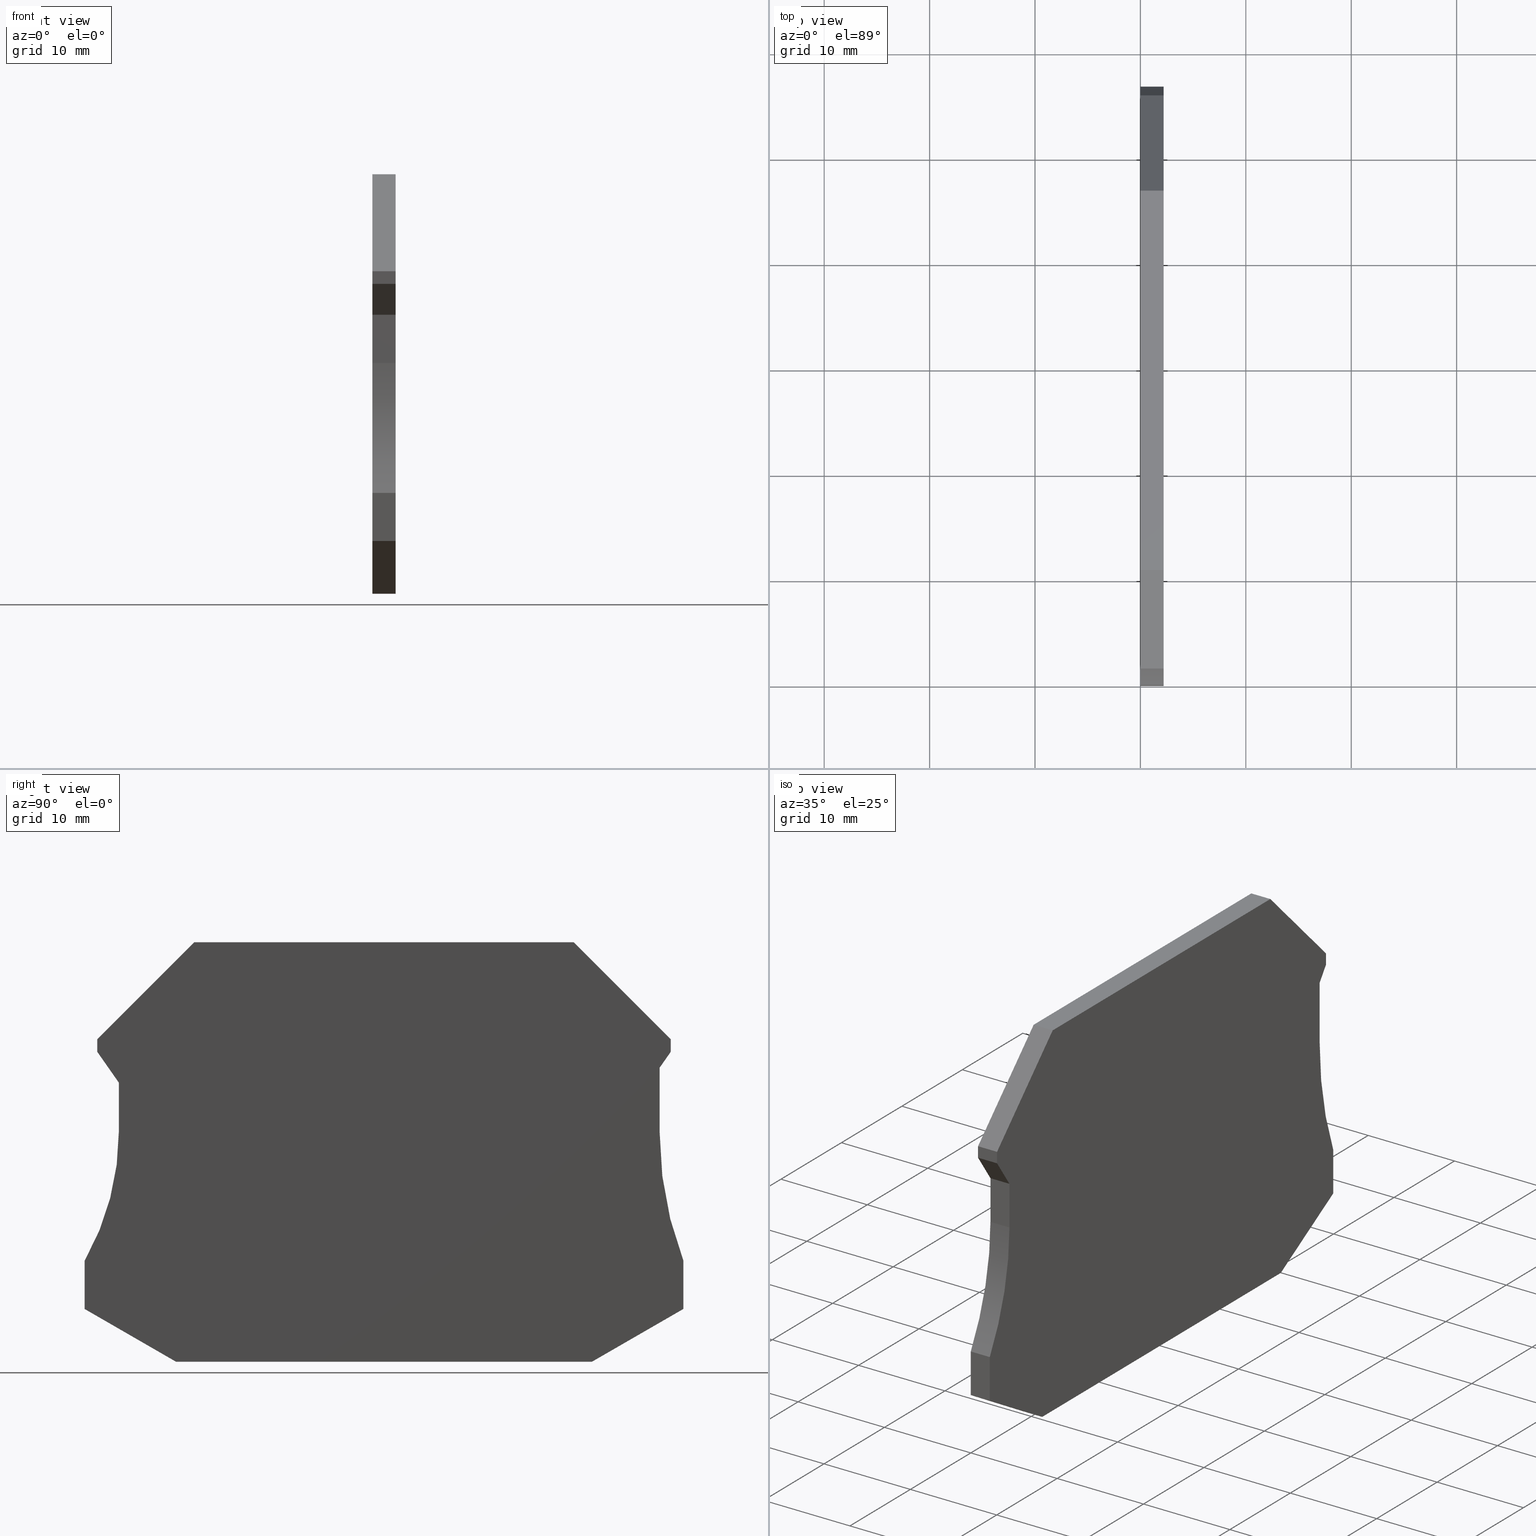
[diagram: canonical four-view strip — front | top / right | iso, engineering-drawing reading convention]
A machine part, canonical four-view strip (front | top / right | iso — engineering-drawing reading convention). The complete STEP part file that produces these views, byte-faithful:
ISO-10303-21;
HEADER;
FILE_DESCRIPTION(('STEP AP214'),'1');
FILE_NAME('cctmp_2EAAB891-A6F8-4A26-BDE4-9A919CDBD264_2023_07_24_21_51_30_0210..stp','2023-07-24T19:51:30',('SIEMENS A&D'),('CADClick - www.CADClick.com'),'Spatial InterOp 3D postprocessed',' ','unknown authorization');
FILE_SCHEMA(('AUTOMOTIVE_DESIGN'));
ENDSEC;
DATA;
#1=MECHANICAL_DESIGN_GEOMETRIC_PRESENTATION_REPRESENTATION(' ',(#10,#11,#12,#13,#14,#15,#16,#17,#18,#19,#20,#21,#22,#23,#24,#25,#26,#27,#28),#6);
#2=PRODUCT_DEFINITION_CONTEXT('',#29,'design');
#3=APPLICATION_PROTOCOL_DEFINITION('INTERNATIONAL STANDARD','automotive_design',1994,#29);
#4=PRODUCT_CATEGORY_RELATIONSHIP('NONE','NONE',#30,#31);
#5=SHAPE_DEFINITION_REPRESENTATION(#32,#33);
#6= (GEOMETRIC_REPRESENTATION_CONTEXT(3)GLOBAL_UNCERTAINTY_ASSIGNED_CONTEXT((#36))GLOBAL_UNIT_ASSIGNED_CONTEXT((#38,#39,#40))REPRESENTATION_CONTEXT('NONE','WORKSPACE'));
#10=STYLED_ITEM('',(#42),#43);
#11=STYLED_ITEM('',(#44),#45);
#12=STYLED_ITEM('',(#46),#47);
#13=STYLED_ITEM('',(#48),#49);
#14=STYLED_ITEM('',(#50),#51);
#15=STYLED_ITEM('',(#52),#53);
#16=STYLED_ITEM('',(#54),#55);
#17=STYLED_ITEM('',(#56),#57);
#18=STYLED_ITEM('',(#58),#59);
#19=STYLED_ITEM('',(#60),#61);
#20=STYLED_ITEM('',(#62),#63);
#21=STYLED_ITEM('',(#64),#65);
#22=STYLED_ITEM('',(#66),#67);
#23=STYLED_ITEM('',(#68),#69);
#24=STYLED_ITEM('',(#70),#71);
#25=STYLED_ITEM('',(#72),#73);
#26=STYLED_ITEM('',(#74),#75);
#27=STYLED_ITEM('',(#76),#77);
#28=STYLED_ITEM('',(#78),#79);
#29=APPLICATION_CONTEXT(' ');
#30=PRODUCT_CATEGORY('part','NONE');
#31=PRODUCT_RELATED_PRODUCT_CATEGORY('detail',' ',(#80));
#32=PRODUCT_DEFINITION_SHAPE('NONE','NONE',#81);
#33=ADVANCED_BREP_SHAPE_REPRESENTATION('2023_07_24_21_51_30_0210',(#79,#82),#6);
#36=UNCERTAINTY_MEASURE_WITH_UNIT(LENGTH_MEASURE(1.0E-006),#38,'','');
#38= (CONVERSION_BASED_UNIT('MILLIMETRE',#85)LENGTH_UNIT()NAMED_UNIT(#88));
#39= (NAMED_UNIT(#90)PLANE_ANGLE_UNIT()SI_UNIT($,.RADIAN.));
#40= (NAMED_UNIT(#90)SOLID_ANGLE_UNIT()SI_UNIT($,.STERADIAN.));
#42=PRESENTATION_STYLE_ASSIGNMENT((#96));
#43=ADVANCED_FACE('',(#97),#98,.F.);
#44=PRESENTATION_STYLE_ASSIGNMENT((#99));
#45=ADVANCED_FACE('',(#100),#101,.F.);
#46=PRESENTATION_STYLE_ASSIGNMENT((#102));
#47=ADVANCED_FACE('',(#103),#104,.T.);
#48=PRESENTATION_STYLE_ASSIGNMENT((#105));
#49=ADVANCED_FACE('',(#106),#107,.F.);
#50=PRESENTATION_STYLE_ASSIGNMENT((#108));
#51=ADVANCED_FACE('',(#109),#110,.F.);
#52=PRESENTATION_STYLE_ASSIGNMENT((#111));
#53=ADVANCED_FACE('',(#112),#113,.F.);
#54=PRESENTATION_STYLE_ASSIGNMENT((#114));
#55=ADVANCED_FACE('',(#115),#116,.T.);
#56=PRESENTATION_STYLE_ASSIGNMENT((#117));
#57=ADVANCED_FACE('',(#118),#119,.T.);
#58=PRESENTATION_STYLE_ASSIGNMENT((#120));
#59=ADVANCED_FACE('',(#121),#122,.T.);
#60=PRESENTATION_STYLE_ASSIGNMENT((#123));
#61=ADVANCED_FACE('',(#124),#125,.F.);
#62=PRESENTATION_STYLE_ASSIGNMENT((#126));
#63=ADVANCED_FACE('',(#127),#128,.T.);
#64=PRESENTATION_STYLE_ASSIGNMENT((#129));
#65=ADVANCED_FACE('',(#130),#131,.F.);
#66=PRESENTATION_STYLE_ASSIGNMENT((#132));
#67=ADVANCED_FACE('',(#133),#134,.T.);
#68=PRESENTATION_STYLE_ASSIGNMENT((#135));
#69=ADVANCED_FACE('',(#136),#137,.F.);
#70=PRESENTATION_STYLE_ASSIGNMENT((#138));
#71=ADVANCED_FACE('',(#139),#140,.F.);
#72=PRESENTATION_STYLE_ASSIGNMENT((#141));
#73=ADVANCED_FACE('',(#142),#143,.T.);
#74=PRESENTATION_STYLE_ASSIGNMENT((#144));
#75=ADVANCED_FACE('',(#145),#146,.F.);
#76=PRESENTATION_STYLE_ASSIGNMENT((#147));
#77=ADVANCED_FACE('',(#148),#149,.T.);
#78=PRESENTATION_STYLE_ASSIGNMENT((#150));
#79=MANIFOLD_SOLID_BREP('2023_07_24_21_51_30_0210',#151);
#80=PRODUCT('2023_07_24_21_51_30_0210','','PART--DESC',(#152));
#81=PRODUCT_DEFINITION('','NONE',#153,#2);
#82=AXIS2_PLACEMENT_3D('',#154,#155,#156);
#85=LENGTH_MEASURE_WITH_UNIT(LENGTH_MEASURE(1.0),#157);
#88=DIMENSIONAL_EXPONENTS(1.0,0.0,0.0,0.0,0.0,0.0,0.0);
#90=DIMENSIONAL_EXPONENTS(0.0,0.0,0.0,0.0,0.0,0.0,0.0);
#96=SURFACE_STYLE_USAGE(.BOTH.,#158);
#97=FACE_OUTER_BOUND('',#159,.T.);
#98=PLANE('',#160);
#99=SURFACE_STYLE_USAGE(.BOTH.,#158);
#100=FACE_OUTER_BOUND('',#162,.T.);
#101=PLANE('',#163);
#102=SURFACE_STYLE_USAGE(.BOTH.,#158);
#103=FACE_OUTER_BOUND('',#165,.T.);
#104=PLANE('',#166);
#105=SURFACE_STYLE_USAGE(.BOTH.,#158);
#106=FACE_OUTER_BOUND('',#168,.T.);
#107=CYLINDRICAL_SURFACE('',#169,25.0);
#108=SURFACE_STYLE_USAGE(.BOTH.,#158);
#109=FACE_OUTER_BOUND('',#171,.T.);
#110=PLANE('',#172);
#111=SURFACE_STYLE_USAGE(.BOTH.,#158);
#112=FACE_OUTER_BOUND('',#174,.T.);
#113=PLANE('',#175);
#114=SURFACE_STYLE_USAGE(.BOTH.,#158);
#115=FACE_OUTER_BOUND('',#177,.T.);
#116=PLANE('',#178);
#117=SURFACE_STYLE_USAGE(.BOTH.,#158);
#118=FACE_OUTER_BOUND('',#180,.T.);
#119=PLANE('',#181);
#120=SURFACE_STYLE_USAGE(.BOTH.,#158);
#121=FACE_OUTER_BOUND('',#183,.T.);
#122=PLANE('',#184);
#123=SURFACE_STYLE_USAGE(.BOTH.,#158);
#124=FACE_OUTER_BOUND('',#186,.T.);
#125=PLANE('',#187);
#126=SURFACE_STYLE_USAGE(.BOTH.,#158);
#127=FACE_OUTER_BOUND('',#189,.T.);
#128=PLANE('',#190);
#129=SURFACE_STYLE_USAGE(.BOTH.,#158);
#130=FACE_OUTER_BOUND('',#192,.T.);
#131=PLANE('',#193);
#132=SURFACE_STYLE_USAGE(.BOTH.,#158);
#133=FACE_OUTER_BOUND('',#195,.T.);
#134=PLANE('',#196);
#135=SURFACE_STYLE_USAGE(.BOTH.,#158);
#136=FACE_OUTER_BOUND('',#198,.T.);
#137=CYLINDRICAL_SURFACE('',#199,34.0);
#138=SURFACE_STYLE_USAGE(.BOTH.,#158);
#139=FACE_OUTER_BOUND('',#201,.T.);
#140=PLANE('',#202);
#141=SURFACE_STYLE_USAGE(.BOTH.,#158);
#142=FACE_OUTER_BOUND('',#204,.T.);
#143=PLANE('',#205);
#144=SURFACE_STYLE_USAGE(.BOTH.,#158);
#145=FACE_OUTER_BOUND('',#207,.T.);
#146=PLANE('',#208);
#147=SURFACE_STYLE_USAGE(.BOTH.,#158);
#148=FACE_OUTER_BOUND('',#210,.T.);
#149=PLANE('',#211);
#150=SURFACE_STYLE_USAGE(.BOTH.,#158);
#151=CLOSED_SHELL('',(#43,#45,#47,#49,#51,#53,#55,#57,#59,#61,#63,#65,#67,#69,#71,#73,#75,#77));
#152=PRODUCT_CONTEXT('',#29,'mechanical');
#153=PRODUCT_DEFINITION_FORMATION_WITH_SPECIFIED_SOURCE(' ','NONE',#80,.NOT_KNOWN.);
#154=CARTESIAN_POINT('',(0.0,0.0,0.0));
#155=DIRECTION('',(0.0,0.0,1.0));
#156=DIRECTION('',(1.0,0.0,0.0));
#157= (NAMED_UNIT(#88)LENGTH_UNIT()SI_UNIT(.MILLI.,.METRE.));
#158=SURFACE_SIDE_STYLE('',(#214));
#159=EDGE_LOOP('',(#215,#216,#217,#218,#219,#220,#221,#222,#223,#224,#225,#226,#227,#228,#229,#230));
#160=AXIS2_PLACEMENT_3D('',#231,#232,#233);
#162=EDGE_LOOP('',(#235,#236,#237,#238));
#163=AXIS2_PLACEMENT_3D('',#239,#240,#241);
#165=EDGE_LOOP('',(#243,#244,#245,#246));
#166=AXIS2_PLACEMENT_3D('',#247,#248,#249);
#168=EDGE_LOOP('',(#251,#252,#253,#254));
#169=AXIS2_PLACEMENT_3D('',#255,#256,#257);
#171=EDGE_LOOP('',(#259,#260,#261,#262));
#172=AXIS2_PLACEMENT_3D('',#263,#264,#265);
#174=EDGE_LOOP('',(#267,#268,#269,#270));
#175=AXIS2_PLACEMENT_3D('',#271,#272,#273);
#177=EDGE_LOOP('',(#275,#276,#277,#278));
#178=AXIS2_PLACEMENT_3D('',#279,#280,#281);
#180=EDGE_LOOP('',(#283,#284,#285,#286));
#181=AXIS2_PLACEMENT_3D('',#287,#288,#289);
#183=EDGE_LOOP('',(#291,#292,#293,#294));
#184=AXIS2_PLACEMENT_3D('',#295,#296,#297);
#186=EDGE_LOOP('',(#299,#300,#301,#302));
#187=AXIS2_PLACEMENT_3D('',#303,#304,#305);
#189=EDGE_LOOP('',(#307,#308,#309,#310));
#190=AXIS2_PLACEMENT_3D('',#311,#312,#313);
#192=EDGE_LOOP('',(#315,#316,#317,#318));
#193=AXIS2_PLACEMENT_3D('',#319,#320,#321);
#195=EDGE_LOOP('',(#323,#324,#325,#326));
#196=AXIS2_PLACEMENT_3D('',#327,#328,#329);
#198=EDGE_LOOP('',(#331,#332,#333,#334));
#199=AXIS2_PLACEMENT_3D('',#335,#336,#337);
#201=EDGE_LOOP('',(#339,#340,#341,#342));
#202=AXIS2_PLACEMENT_3D('',#343,#344,#345);
#204=EDGE_LOOP('',(#347,#348,#349,#350));
#205=AXIS2_PLACEMENT_3D('',#351,#352,#353);
#207=EDGE_LOOP('',(#355,#356,#357,#358));
#208=AXIS2_PLACEMENT_3D('',#359,#360,#361);
#210=EDGE_LOOP('',(#363,#364,#365,#366,#367,#368,#369,#370,#371,#372,#373,#374,#375,#376,#377,#378));
#211=AXIS2_PLACEMENT_3D('',#379,#380,#381);
#214=SURFACE_STYLE_FILL_AREA(#383);
#215=ORIENTED_EDGE('',*,*,#384,.T.);
#216=ORIENTED_EDGE('',*,*,#385,.T.);
#217=ORIENTED_EDGE('',*,*,#386,.F.);
#218=ORIENTED_EDGE('',*,*,#387,.F.);
#219=ORIENTED_EDGE('',*,*,#388,.F.);
#220=ORIENTED_EDGE('',*,*,#389,.F.);
#221=ORIENTED_EDGE('',*,*,#390,.F.);
#222=ORIENTED_EDGE('',*,*,#391,.F.);
#223=ORIENTED_EDGE('',*,*,#392,.T.);
#224=ORIENTED_EDGE('',*,*,#393,.T.);
#225=ORIENTED_EDGE('',*,*,#394,.F.);
#226=ORIENTED_EDGE('',*,*,#395,.T.);
#227=ORIENTED_EDGE('',*,*,#396,.T.);
#228=ORIENTED_EDGE('',*,*,#397,.T.);
#229=ORIENTED_EDGE('',*,*,#398,.T.);
#230=ORIENTED_EDGE('',*,*,#399,.T.);
#231=CARTESIAN_POINT('',(-9.08767762814606E-028,66.3167035417405,-3.98000240000014));
#232=DIRECTION('',(1.0,-6.27781712017518E-043,0.0));
#233=DIRECTION('',(6.27781712017518E-043,1.0,1.05655906439346E-014));
#235=ORIENTED_EDGE('',*,*,#401,.F.);
#236=ORIENTED_EDGE('',*,*,#402,.T.);
#237=ORIENTED_EDGE('',*,*,#392,.F.);
#238=ORIENTED_EDGE('',*,*,#403,.F.);
#239=CARTESIAN_POINT('',(1.10000000000006,55.5999999999994,30.6000000000026));
#240=DIRECTION('',(0.0,-1.0,-1.05655906439346E-014));
#241=DIRECTION('',(1.0,-1.11631705655198E-028,1.05655906439346E-014));
#243=ORIENTED_EDGE('',*,*,#405,.F.);
#244=ORIENTED_EDGE('',*,*,#399,.F.);
#245=ORIENTED_EDGE('',*,*,#406,.F.);
#246=ORIENTED_EDGE('',*,*,#407,.T.);
#247=CARTESIAN_POINT('',(2.20000000000033,0.0417178364731425,4.98394683393298));
#248=DIRECTION('',(9.15006990363455E-015,-0.499999999999991,-0.866025403784444));
#249=DIRECTION('',(-5.2827953219673E-015,-0.866025403784444,0.499999999999991));
#251=ORIENTED_EDGE('',*,*,#409,.T.);
#252=ORIENTED_EDGE('',*,*,#410,.T.);
#253=ORIENTED_EDGE('',*,*,#411,.T.);
#254=ORIENTED_EDGE('',*,*,#385,.F.);
#255=CARTESIAN_POINT('',(2.20000000000015,-21.7500000000005,21.8999999999999));
#256=DIRECTION('',(-1.0,1.11631705655199E-028,-1.05655906439346E-014));
#257=DIRECTION('',(6.02670443536817E-043,1.0,1.05655906439346E-014));
#259=ORIENTED_EDGE('',*,*,#413,.F.);
#260=ORIENTED_EDGE('',*,*,#403,.T.);
#261=ORIENTED_EDGE('',*,*,#391,.T.);
#262=ORIENTED_EDGE('',*,*,#414,.F.);
#263=CARTESIAN_POINT('',(1.09999999999996,46.3999999999974,39.8000000000025));
#264=DIRECTION('',(7.47100079156643E-015,-0.707106781186622,-0.707106781186473));
#265=DIRECTION('',(-7.47100079156816E-015,-0.707106781186473,0.707106781186622));
#267=ORIENTED_EDGE('',*,*,#416,.T.);
#268=ORIENTED_EDGE('',*,*,#414,.T.);
#269=ORIENTED_EDGE('',*,*,#390,.T.);
#270=ORIENTED_EDGE('',*,*,#417,.F.);
#271=CARTESIAN_POINT('',(1.60000000000012,28.1999999999993,39.8000000000023));
#272=DIRECTION('',(0.0,1.05655906439348E-014,-1.0));
#273=DIRECTION('',(-1.0,6.27781712017518E-043,6.63288458292564E-057));
#275=ORIENTED_EDGE('',*,*,#417,.T.);
#276=ORIENTED_EDGE('',*,*,#389,.T.);
#277=ORIENTED_EDGE('',*,*,#419,.F.);
#278=ORIENTED_EDGE('',*,*,#420,.T.);
#279=CARTESIAN_POINT('',(1.09999999999996,10.4000000000012,39.8000000000021));
#280=DIRECTION('',(-7.47100079156643E-015,-0.707106781186637,0.707106781186458));
#281=DIRECTION('',(1.0,-1.11631705655199E-028,1.05655906439346E-014));
#283=ORIENTED_EDGE('',*,*,#422,.T.);
#284=ORIENTED_EDGE('',*,*,#387,.T.);
#285=ORIENTED_EDGE('',*,*,#423,.T.);
#286=ORIENTED_EDGE('',*,*,#424,.T.);
#287=CARTESIAN_POINT('',(1.10000000000007,1.19999999999935,29.4000000000025));
#288=DIRECTION('',(6.06017382949196E-015,-0.819152044288986,-0.573576436351055));
#289=DIRECTION('',(-8.65482517509968E-015,-0.573576436351055,0.819152044288986));
#291=ORIENTED_EDGE('',*,*,#419,.T.);
#292=ORIENTED_EDGE('',*,*,#388,.T.);
#293=ORIENTED_EDGE('',*,*,#422,.F.);
#294=ORIENTED_EDGE('',*,*,#426,.T.);
#295=CARTESIAN_POINT('',(1.10000000000006,1.19999999999934,30.600000000002));
#296=DIRECTION('',(0.0,-1.0,-1.05655906439346E-014));
#297=DIRECTION('',(1.0,-1.11631705655198E-028,1.05655906439346E-014));
#299=ORIENTED_EDGE('',*,*,#428,.F.);
#300=ORIENTED_EDGE('',*,*,#409,.F.);
#301=ORIENTED_EDGE('',*,*,#384,.F.);
#302=ORIENTED_EDGE('',*,*,#405,.T.);
#303=CARTESIAN_POINT('',(-2.20000239999972,-1.77635683940025E-014,8.80658585545214));
#304=DIRECTION('',(2.93254050041516E-031,1.0,1.0537835068319E-014));
#305=DIRECTION('',(1.0,-1.11631705655198E-028,1.05655906439346E-014));
#307=ORIENTED_EDGE('',*,*,#406,.T.);
#308=ORIENTED_EDGE('',*,*,#398,.F.);
#309=ORIENTED_EDGE('',*,*,#430,.T.);
#310=ORIENTED_EDGE('',*,*,#431,.T.);
#311=CARTESIAN_POINT('',(-0.499999999999635,38.2139895394442,-1.35003119794419E-013));
#312=DIRECTION('',(1.05655906439346E-014,1.05655906439346E-014,-1.0));
#313=DIRECTION('',(-1.0,1.11631705655199E-028,-1.05655906439346E-014));
#315=ORIENTED_EDGE('',*,*,#433,.F.);
#316=ORIENTED_EDGE('',*,*,#393,.F.);
#317=ORIENTED_EDGE('',*,*,#402,.F.);
#318=ORIENTED_EDGE('',*,*,#434,.F.);
#319=CARTESIAN_POINT('',(1.10000000000007,55.5999999999994,29.4000000000031));
#320=DIRECTION('',(-6.06017382949196E-015,-0.819152044288998,0.573576436351037));
#321=DIRECTION('',(1.0,-1.11631705655199E-028,1.05655906439346E-014));
#323=ORIENTED_EDGE('',*,*,#394,.T.);
#324=ORIENTED_EDGE('',*,*,#433,.T.);
#325=ORIENTED_EDGE('',*,*,#436,.T.);
#326=ORIENTED_EDGE('',*,*,#437,.F.);
#327=CARTESIAN_POINT('',(2.20000000000015,54.5499999999995,21.7621318441144));
#328=DIRECTION('',(0.0,1.0,1.05655906439346E-014));
#329=DIRECTION('',(-1.05655906439346E-014,-1.05655906439346E-014,1.0));
#331=ORIENTED_EDGE('',*,*,#439,.T.);
#332=ORIENTED_EDGE('',*,*,#440,.F.);
#333=ORIENTED_EDGE('',*,*,#395,.F.);
#334=ORIENTED_EDGE('',*,*,#437,.T.);
#335=CARTESIAN_POINT('',(2.20000000000015,88.5499999999995,21.7621318441147));
#336=DIRECTION('',(-1.0,1.11631705655199E-028,-1.05655906439346E-014));
#337=DIRECTION('',(6.11955282302791E-043,1.0,1.05655906439346E-014));
#339=ORIENTED_EDGE('',*,*,#396,.F.);
#340=ORIENTED_EDGE('',*,*,#440,.T.);
#341=ORIENTED_EDGE('',*,*,#442,.F.);
#342=ORIENTED_EDGE('',*,*,#443,.F.);
#343=CARTESIAN_POINT('',(-2.20000239999969,56.8,5.87405804183574));
#344=DIRECTION('',(0.0,-1.0,-1.05655906439346E-014));
#345=DIRECTION('',(1.0,-1.11631705655198E-028,1.05655906439346E-014));
#347=ORIENTED_EDGE('',*,*,#423,.F.);
#348=ORIENTED_EDGE('',*,*,#386,.T.);
#349=ORIENTED_EDGE('',*,*,#411,.F.);
#350=ORIENTED_EDGE('',*,*,#445,.T.);
#351=CARTESIAN_POINT('',(1.10000000000011,3.2499999999994,26.4722965861811));
#352=DIRECTION('',(0.0,-1.0,-1.05655906439346E-014));
#353=DIRECTION('',(1.0,-1.11631705655198E-028,1.05655906439346E-014));
#355=ORIENTED_EDGE('',*,*,#430,.F.);
#356=ORIENTED_EDGE('',*,*,#397,.F.);
#357=ORIENTED_EDGE('',*,*,#443,.T.);
#358=ORIENTED_EDGE('',*,*,#447,.F.);
#359=CARTESIAN_POINT('',(-2.20000239999962,47.8346943270423,-0.168089005598254));
#360=DIRECTION('',(-9.15006990363455E-015,-0.500000000000009,0.866025403784433));
#361=DIRECTION('',(1.0,-1.11631705655199E-028,1.05655906439346E-014));
#363=ORIENTED_EDGE('',*,*,#407,.F.);
#364=ORIENTED_EDGE('',*,*,#431,.F.);
#365=ORIENTED_EDGE('',*,*,#447,.T.);
#366=ORIENTED_EDGE('',*,*,#442,.T.);
#367=ORIENTED_EDGE('',*,*,#439,.F.);
#368=ORIENTED_EDGE('',*,*,#436,.F.);
#369=ORIENTED_EDGE('',*,*,#434,.T.);
#370=ORIENTED_EDGE('',*,*,#401,.T.);
#371=ORIENTED_EDGE('',*,*,#413,.T.);
#372=ORIENTED_EDGE('',*,*,#416,.F.);
#373=ORIENTED_EDGE('',*,*,#420,.F.);
#374=ORIENTED_EDGE('',*,*,#426,.F.);
#375=ORIENTED_EDGE('',*,*,#424,.F.);
#376=ORIENTED_EDGE('',*,*,#445,.F.);
#377=ORIENTED_EDGE('',*,*,#410,.F.);
#378=ORIENTED_EDGE('',*,*,#428,.T.);
#379=CARTESIAN_POINT('',(2.20000000000036,32.7064406857822,2.60070502397922));
#380=DIRECTION('',(1.0,-1.11631705655199E-028,1.05655906439346E-014));
#381=DIRECTION('',(6.27781712017518E-043,1.0,1.05655906439346E-014));
#383=FILL_AREA_STYLE('',(#450));
#384=EDGE_CURVE('',#451,#452,#453,.T.);
#385=EDGE_CURVE('',#452,#454,#455,.T.);
#386=EDGE_CURVE('',#456,#454,#457,.T.);
#387=EDGE_CURVE('',#458,#456,#459,.T.);
#388=EDGE_CURVE('',#460,#458,#461,.T.);
#389=EDGE_CURVE('',#462,#460,#463,.T.);
#390=EDGE_CURVE('',#464,#462,#465,.T.);
#391=EDGE_CURVE('',#466,#464,#467,.T.);
#392=EDGE_CURVE('',#466,#468,#469,.T.);
#393=EDGE_CURVE('',#468,#470,#471,.T.);
#394=EDGE_CURVE('',#472,#470,#473,.T.);
#395=EDGE_CURVE('',#472,#474,#475,.T.);
#396=EDGE_CURVE('',#474,#476,#477,.T.);
#397=EDGE_CURVE('',#476,#478,#479,.T.);
#398=EDGE_CURVE('',#478,#480,#481,.T.);
#399=EDGE_CURVE('',#480,#451,#482,.T.);
#401=EDGE_CURVE('',#484,#485,#486,.T.);
#402=EDGE_CURVE('',#484,#468,#487,.T.);
#403=EDGE_CURVE('',#485,#466,#488,.T.);
#405=EDGE_CURVE('',#451,#490,#491,.T.);
#406=EDGE_CURVE('',#492,#480,#493,.T.);
#407=EDGE_CURVE('',#492,#490,#494,.T.);
#409=EDGE_CURVE('',#452,#496,#497,.T.);
#410=EDGE_CURVE('',#496,#498,#499,.T.);
#411=EDGE_CURVE('',#498,#454,#500,.T.);
#413=EDGE_CURVE('',#485,#502,#503,.T.);
#414=EDGE_CURVE('',#502,#464,#504,.T.);
#416=EDGE_CURVE('',#506,#502,#507,.T.);
#417=EDGE_CURVE('',#506,#462,#508,.T.);
#419=EDGE_CURVE('',#510,#460,#511,.T.);
#420=EDGE_CURVE('',#510,#506,#512,.T.);
#422=EDGE_CURVE('',#514,#458,#515,.T.);
#423=EDGE_CURVE('',#456,#516,#517,.T.);
#424=EDGE_CURVE('',#516,#514,#518,.T.);
#426=EDGE_CURVE('',#514,#510,#520,.T.);
#428=EDGE_CURVE('',#496,#490,#522,.T.);
#430=EDGE_CURVE('',#478,#524,#525,.T.);
#431=EDGE_CURVE('',#524,#492,#526,.T.);
#433=EDGE_CURVE('',#470,#528,#529,.T.);
#434=EDGE_CURVE('',#528,#484,#530,.T.);
#436=EDGE_CURVE('',#528,#532,#533,.T.);
#437=EDGE_CURVE('',#472,#532,#534,.T.);
#439=EDGE_CURVE('',#532,#536,#537,.T.);
#440=EDGE_CURVE('',#474,#536,#538,.T.);
#442=EDGE_CURVE('',#540,#536,#541,.T.);
#443=EDGE_CURVE('',#476,#540,#542,.T.);
#445=EDGE_CURVE('',#498,#516,#544,.T.);
#447=EDGE_CURVE('',#524,#540,#546,.T.);
#450=FILL_AREA_STYLE_COLOUR('',#549);
#451=VERTEX_POINT('',#550);
#452=VERTEX_POINT('',#551);
#453=LINE('',#552,#553);
#454=VERTEX_POINT('',#554);
#455=CIRCLE('',#555,25.0);
#456=VERTEX_POINT('',#556);
#457=LINE('',#557,#558);
#458=VERTEX_POINT('',#559);
#459=LINE('',#560,#561);
#460=VERTEX_POINT('',#562);
#461=LINE('',#563,#564);
#462=VERTEX_POINT('',#565);
#463=LINE('',#566,#567);
#464=VERTEX_POINT('',#568);
#465=LINE('',#569,#570);
#466=VERTEX_POINT('',#571);
#467=LINE('',#572,#573);
#468=VERTEX_POINT('',#574);
#469=LINE('',#575,#576);
#470=VERTEX_POINT('',#577);
#471=LINE('',#578,#579);
#472=VERTEX_POINT('',#580);
#473=LINE('',#581,#582);
#474=VERTEX_POINT('',#583);
#475=CIRCLE('',#584,34.0);
#476=VERTEX_POINT('',#585);
#477=LINE('',#586,#587);
#478=VERTEX_POINT('',#588);
#479=LINE('',#589,#590);
#480=VERTEX_POINT('',#591);
#481=LINE('',#592,#593);
#482=LINE('',#594,#595);
#484=VERTEX_POINT('',#597);
#485=VERTEX_POINT('',#598);
#486=LINE('',#599,#600);
#487=LINE('',#601,#602);
#488=LINE('',#603,#604);
#490=VERTEX_POINT('',#606);
#491=LINE('',#607,#608);
#492=VERTEX_POINT('',#609);
#493=LINE('',#610,#611);
#494=LINE('',#612,#613);
#496=VERTEX_POINT('',#615);
#497=LINE('',#616,#617);
#498=VERTEX_POINT('',#618);
#499=CIRCLE('',#619,25.0);
#500=LINE('',#620,#621);
#502=VERTEX_POINT('',#623);
#503=LINE('',#624,#625);
#504=LINE('',#626,#627);
#506=VERTEX_POINT('',#629);
#507=LINE('',#630,#631);
#508=LINE('',#632,#633);
#510=VERTEX_POINT('',#635);
#511=LINE('',#636,#637);
#512=LINE('',#638,#639);
#514=VERTEX_POINT('',#641);
#515=LINE('',#642,#643);
#516=VERTEX_POINT('',#644);
#517=LINE('',#645,#646);
#518=LINE('',#647,#648);
#520=LINE('',#650,#651);
#522=LINE('',#653,#654);
#524=VERTEX_POINT('',#656);
#525=LINE('',#657,#658);
#526=LINE('',#659,#660);
#528=VERTEX_POINT('',#662);
#529=LINE('',#663,#664);
#530=LINE('',#665,#666);
#532=VERTEX_POINT('',#668);
#533=LINE('',#669,#670);
#534=LINE('',#671,#672);
#536=VERTEX_POINT('',#674);
#537=CIRCLE('',#675,34.0);
#538=LINE('',#676,#677);
#540=VERTEX_POINT('',#679);
#541=LINE('',#680,#681);
#542=LINE('',#682,#683);
#544=LINE('',#685,#686);
#546=LINE('',#688,#689);
#549=COLOUR_RGB('',0.560784339904785,0.588235318660736,0.600000023841858);
#550=CARTESIAN_POINT('',(-2.52435489670724E-028,2.22044604925031E-014,5.00803263805066));
#551=CARTESIAN_POINT('',(-3.53409685539013E-028,-2.57571741713036E-014,9.57370696437977));
#552=CARTESIAN_POINT('',(-3.02922587604869E-028,-1.82076576038526E-013,24.3638730000068));
#553=VECTOR('',#692,1.0);
#554=CARTESIAN_POINT('',(1.21442045182528E-016,3.24999999999943,21.9000000000002));
#555=AXIS2_PLACEMENT_3D('',#693,#694,#695);
#556=CARTESIAN_POINT('',(-5.55358077275592E-028,3.2499999999994,26.4722965861811));
#557=CARTESIAN_POINT('',(3.73408332937063E-014,3.24999999999906,58.2500000000069));
#558=VECTOR('',#696,1.0);
#559=CARTESIAN_POINT('',(-1.06022905661704E-027,1.19999999999935,29.4000000000025));
#560=CARTESIAN_POINT('',(3.73408332937063E-014,-19.0009874773542,58.2500000000066));
#561=VECTOR('',#697,1.0);
#562=CARTESIAN_POINT('',(-2.86682059164337E-016,1.19999999999934,30.599999999998));
#563=CARTESIAN_POINT('',(3.73408332937063E-014,1.19999999999905,58.2500000000068));
#564=VECTOR('',#698,1.0);
#565=CARTESIAN_POINT('',(-2.52435489670724E-029,10.4000000000012,39.8000000000021));
#566=CARTESIAN_POINT('',(3.73408332937063E-014,28.8500000000016,58.2500000000071));
#567=VECTOR('',#699,1.0);
#568=CARTESIAN_POINT('',(-2.52435489670724E-029,46.3999999999974,39.8000000000025));
#569=CARTESIAN_POINT('',(3.73408332937061E-014,-5.92968082605144,39.8000000000019));
#570=VECTOR('',#700,1.0);
#571=CARTESIAN_POINT('',(-7.57306469012171E-028,55.5999999999994,30.5999999999986));
#572=CARTESIAN_POINT('',(-2.63800801330424E-018,61.8361269999891,24.3638730000074));
#573=VECTOR('',#701,1.0);
#574=CARTESIAN_POINT('',(3.0213716972939E-017,55.5999999999994,29.4000000000031));
#575=CARTESIAN_POINT('',(3.73408332937063E-014,55.5999999999991,58.2500000000074));
#576=VECTOR('',#702,1.0);
#577=CARTESIAN_POINT('',(2.12172912172405E-017,54.5499999999994,27.9004445929237));
#578=CARTESIAN_POINT('',(3.73408332937063E-014,75.8009874773523,58.2500000000076));
#579=VECTOR('',#703,1.0);
#580=CARTESIAN_POINT('',(-1.98256296288709E-016,54.5499999999995,21.7621318441143));
#581=CARTESIAN_POINT('',(3.73408332937063E-014,54.5499999999991,58.2500000000074));
#582=VECTOR('',#704,1.0);
#583=CARTESIAN_POINT('',(1.28310558402815E-013,56.8,9.59917578894326));
#584=AXIS2_PLACEMENT_3D('',#705,#706,#707);
#585=CARTESIAN_POINT('',(-1.5793868493622E-016,56.8,5.00803263805126));
#586=CARTESIAN_POINT('',(3.73408332937063E-014,56.7999999999995,58.2500000000074));
#587=VECTOR('',#708,1.0);
#588=CARTESIAN_POINT('',(-6.54307567913452E-017,48.1258330249321,-2.8421709430404E-014));
#589=CARTESIAN_POINT('',(3.73408332937049E-014,-5.92968082605069,-31.2089654730493));
#590=VECTOR('',#709,1.0);
#591=CARTESIAN_POINT('',(-3.55311880359357E-016,8.67416697506799,-4.40536496171262E-013));
#592=CARTESIAN_POINT('',(2.33650408372491E-013,41.990604173949,-9.2370555648813E-014));
#593=VECTOR('',#710,1.0);
#594=CARTESIAN_POINT('',(-1.11071615455118E-027,41.9906041739492,-19.2352539852133));
#595=VECTOR('',#711,1.0);
#597=CARTESIAN_POINT('',(2.20000000000007,55.5999999999994,29.4000000000031));
#598=CARTESIAN_POINT('',(2.20000000000006,55.5999999999994,30.5999999999986));
#599=CARTESIAN_POINT('',(2.20000000000013,55.5999999999994,24.3638730000074));
#600=VECTOR('',#712,1.0);
#601=CARTESIAN_POINT('',(6.56525946267686E-014,55.5999999999994,29.4000000000031));
#602=VECTOR('',#713,1.0);
#603=CARTESIAN_POINT('',(5.29738858540947E-014,55.5999999999994,30.5999999999986));
#604=VECTOR('',#714,1.0);
#606=CARTESIAN_POINT('',(2.20000000000033,2.22044604925031E-014,5.00803263805069));
#607=CARTESIAN_POINT('',(3.23368136773365E-013,2.22044604925031E-014,5.00803263805066));
#608=VECTOR('',#715,1.0);
#609=CARTESIAN_POINT('',(2.20000000000038,8.67416697506799,-4.19220214098459E-013));
#610=CARTESIAN_POINT('',(3.76280959558478E-013,8.67416697506799,-4.40536496171262E-013));
#611=VECTOR('',#716,1.0);
#612=CARTESIAN_POINT('',(2.20000000000059,41.9906041739492,-19.2352539852133));
#613=VECTOR('',#717,1.0);
#615=CARTESIAN_POINT('',(2.20000000000028,-2.57571741713036E-014,9.57370696437979));
#616=CARTESIAN_POINT('',(2.20000000000028,-2.57571741713036E-014,9.57370696437979));
#617=VECTOR('',#718,1.0);
#618=CARTESIAN_POINT('',(2.20000000000015,3.24999999999943,21.9000000000002));
#619=AXIS2_PLACEMENT_3D('',#719,#720,#721);
#620=CARTESIAN_POINT('',(1.10000000000015,3.24999999999943,21.9000000000002));
#621=VECTOR('',#722,1.0);
#623=CARTESIAN_POINT('',(2.19999999999996,46.3999999999974,39.8000000000025));
#624=CARTESIAN_POINT('',(2.20000000000013,61.8361269999891,24.3638730000074));
#625=VECTOR('',#723,1.0);
#626=CARTESIAN_POINT('',(-4.42295480701459E-014,46.3999999999974,39.8000000000025));
#627=VECTOR('',#724,1.0);
#629=CARTESIAN_POINT('',(2.19999999999996,10.4000000000012,39.8000000000021));
#630=CARTESIAN_POINT('',(2.19999999999996,41.9906041739486,39.8000000000024));
#631=VECTOR('',#725,1.0);
#632=CARTESIAN_POINT('',(-4.42295480701459E-014,10.4000000000012,39.8000000000021));
#633=VECTOR('',#726,1.0);
#635=CARTESIAN_POINT('',(2.20000000000006,1.19999999999934,30.599999999998));
#636=CARTESIAN_POINT('',(5.29738858540947E-014,1.19999999999934,30.599999999998));
#637=VECTOR('',#727,1.0);
#638=CARTESIAN_POINT('',(2.20000000000013,-5.03612699999033,24.3638730000067));
#639=VECTOR('',#728,1.0);
#641=CARTESIAN_POINT('',(2.20000000000007,1.19999999999935,29.4000000000025));
#642=CARTESIAN_POINT('',(6.56525946267686E-014,1.19999999999935,29.4000000000025));
#643=VECTOR('',#729,1.0);
#644=CARTESIAN_POINT('',(2.20000000000011,3.2499999999994,26.4722965861811));
#645=CARTESIAN_POINT('',(9.65855104240554E-014,3.2499999999994,26.4722965861811));
#646=VECTOR('',#730,1.0);
#647=CARTESIAN_POINT('',(2.20000000000013,4.72633408877784,24.3638730000068));
#648=VECTOR('',#731,1.0);
#650=CARTESIAN_POINT('',(2.20000000000013,1.19999999999941,24.3638730000068));
#651=VECTOR('',#732,1.0);
#653=CARTESIAN_POINT('',(2.20000000000013,-1.82076576038526E-013,24.3638730000068));
#654=VECTOR('',#733,1.0);
#656=CARTESIAN_POINT('',(2.20000000000038,48.1258330249321,-7.105427357601E-015));
#657=CARTESIAN_POINT('',(3.76280959558478E-013,48.1258330249321,-2.8421709430404E-014));
#658=VECTOR('',#734,1.0);
#659=CARTESIAN_POINT('',(2.20000000000038,41.990604173949,-7.105427357601E-014));
#660=VECTOR('',#735,1.0);
#662=CARTESIAN_POINT('',(2.20000000000009,54.5499999999994,27.9004445929238));
#663=CARTESIAN_POINT('',(8.14962832058672E-014,54.5499999999994,27.9004445929237));
#664=VECTOR('',#736,1.0);
#665=CARTESIAN_POINT('',(2.20000000000013,52.073665911221,24.3638730000073));
#666=VECTOR('',#737,1.0);
#668=CARTESIAN_POINT('',(2.20000000000015,54.5499999999995,21.7621318441144));
#669=CARTESIAN_POINT('',(2.20000000000013,54.5499999999994,24.3638730000074));
#670=VECTOR('',#738,1.0);
#671=CARTESIAN_POINT('',(1.36581220337531E-013,54.5499999999995,21.7621318441143));
#672=VECTOR('',#739,1.0);
#674=CARTESIAN_POINT('',(2.20000000000028,56.8,9.59917578894328));
#675=AXIS2_PLACEMENT_3D('',#740,#741,#742);
#676=CARTESIAN_POINT('',(2.20000000000028,56.8,9.59917578894328));
#677=VECTOR('',#743,1.0);
#679=CARTESIAN_POINT('',(2.20000000000033,56.8,5.00803263805128));
#680=CARTESIAN_POINT('',(2.20000000000013,56.7999999999998,24.3638730000074));
#681=VECTOR('',#744,1.0);
#682=CARTESIAN_POINT('',(3.23368136773365E-013,56.8,5.00803263805126));
#683=VECTOR('',#745,1.0);
#685=CARTESIAN_POINT('',(2.20000000000013,3.24999999999942,24.3638730000068));
#686=VECTOR('',#746,1.0);
#688=CARTESIAN_POINT('',(2.20000000000042,41.990604173949,-3.54217602865517));
#689=VECTOR('',#747,1.0);
#692=DIRECTION('',(0.0,-1.0537835068319E-014,1.0));
#693=CARTESIAN_POINT('',(3.74249356725875E-014,-21.7500000000005,21.8999999999999));
#694=DIRECTION('',(1.0,-1.11631705655199E-028,1.05655906439346E-014));
#695=DIRECTION('',(6.02670443536817E-043,1.0,1.05655906439346E-014));
#696=DIRECTION('',(0.0,1.05655906439346E-014,-1.0));
#697=DIRECTION('',(-4.91441697654573E-018,0.573576436351055,-0.819152044288986));
#698=DIRECTION('',(0.0,1.05655906439346E-014,-1.0));
#699=DIRECTION('',(3.25065265796183E-017,-0.707106781186458,-0.707106781186637));
#700=DIRECTION('',(1.30957767131123E-044,-1.0,-1.05655906439344E-014));
#701=DIRECTION('',(-8.80176778108777E-017,-0.707106781186473,0.707106781186622));
#702=DIRECTION('',(0.0,1.05655906439346E-014,-1.0));
#703=DIRECTION('',(-4.91441697654573E-018,-0.573576436351037,-0.819152044288998));
#704=DIRECTION('',(0.0,-1.05655906439346E-014,1.0));
#705=CARTESIAN_POINT('',(3.75493265409673E-014,88.5499999999995,21.7621318441147));
#706=DIRECTION('',(1.0,-1.11631705655199E-028,1.05655906439346E-014));
#707=DIRECTION('',(6.11955282302791E-043,1.0,1.05655906439346E-014));
#708=DIRECTION('',(0.0,1.05655906439346E-014,-1.0));
#709=DIRECTION('',(9.23595499781019E-018,-0.866025403784433,-0.500000000000009));
#710=DIRECTION('',(5.25980973659004E-015,-1.0,-1.05655906439345E-014));
#711=DIRECTION('',(-9.23595499781019E-018,-0.866025403784444,0.499999999999991));
#712=DIRECTION('',(-1.05655906439346E-014,-1.05655906439346E-014,1.0));
#713=DIRECTION('',(-1.0,1.11631705655199E-028,-1.05655906439346E-014));
#714=DIRECTION('',(-1.0,1.11631705655199E-028,-1.05655906439346E-014));
#715=DIRECTION('',(1.0,-1.11631705655199E-028,1.05655906439346E-014));
#716=DIRECTION('',(-1.0,1.11631705655199E-028,-1.05655906439346E-014));
#717=DIRECTION('',(-5.2827953219673E-015,-0.866025403784444,0.499999999999991));
#718=DIRECTION('',(1.0,-1.11631705655199E-028,1.05655906439346E-014));
#719=CARTESIAN_POINT('',(2.20000000000015,-21.7500000000005,21.8999999999999));
#720=DIRECTION('',(1.0,-1.11631705655199E-028,1.05655906439346E-014));
#721=DIRECTION('',(6.02670443536817E-043,1.0,1.05655906439346E-014));
#722=DIRECTION('',(-1.0,1.11631705655199E-028,-1.05655906439346E-014));
#723=DIRECTION('',(-7.47100079156816E-015,-0.707106781186473,0.707106781186622));
#724=DIRECTION('',(-1.0,-1.05655906439322E-014,-1.12018248541384E-028));
#725=DIRECTION('',(1.70209354362047E-042,1.0,1.05655906439344E-014));
#726=DIRECTION('',(-1.0,1.05655906439322E-014,1.12018248541384E-028));
#727=DIRECTION('',(-1.0,1.11631705655199E-028,-1.05655906439346E-014));
#728=DIRECTION('',(-7.47100079156816E-015,0.707106781186458,0.707106781186637));
#729=DIRECTION('',(-1.0,1.11631705655199E-028,-1.05655906439346E-014));
#730=DIRECTION('',(1.0,-1.11631705655199E-028,1.05655906439346E-014));
#731=DIRECTION('',(-8.65482517509968E-015,-0.573576436351055,0.819152044288986));
#732=DIRECTION('',(-1.05655906439346E-014,-1.05655906439346E-014,1.0));
#733=DIRECTION('',(1.05655906439346E-014,1.0537835068319E-014,-1.0));
#734=DIRECTION('',(1.0,-1.11631705655199E-028,1.05655906439346E-014));
#735=DIRECTION('',(0.0,-1.0,-1.05655906439346E-014));
#736=DIRECTION('',(1.0,-1.11631705655199E-028,1.05655906439346E-014));
#737=DIRECTION('',(-8.65482517509968E-015,0.573576436351037,0.819152044288998));
#738=DIRECTION('',(1.05655906439346E-014,1.05655906439346E-014,-1.0));
#739=DIRECTION('',(1.0,-1.11631705655199E-028,1.05655906439346E-014));
#740=CARTESIAN_POINT('',(2.20000000000015,88.5499999999995,21.7621318441147));
#741=DIRECTION('',(1.0,-1.11631705655199E-028,1.05655906439346E-014));
#742=DIRECTION('',(6.11955282302791E-043,1.0,1.05655906439346E-014));
#743=DIRECTION('',(1.0,-1.11631705655199E-028,1.05655906439346E-014));
#744=DIRECTION('',(-1.05655906439346E-014,-1.05655906439346E-014,1.0));
#745=DIRECTION('',(1.0,-1.11631705655199E-028,1.05655906439346E-014));
#746=DIRECTION('',(-1.05655906439346E-014,-1.05655906439346E-014,1.0));
#747=DIRECTION('',(-5.2827953219673E-015,0.866025403784433,0.500000000000009));
ENDSEC;
END-ISO-10303-21;

